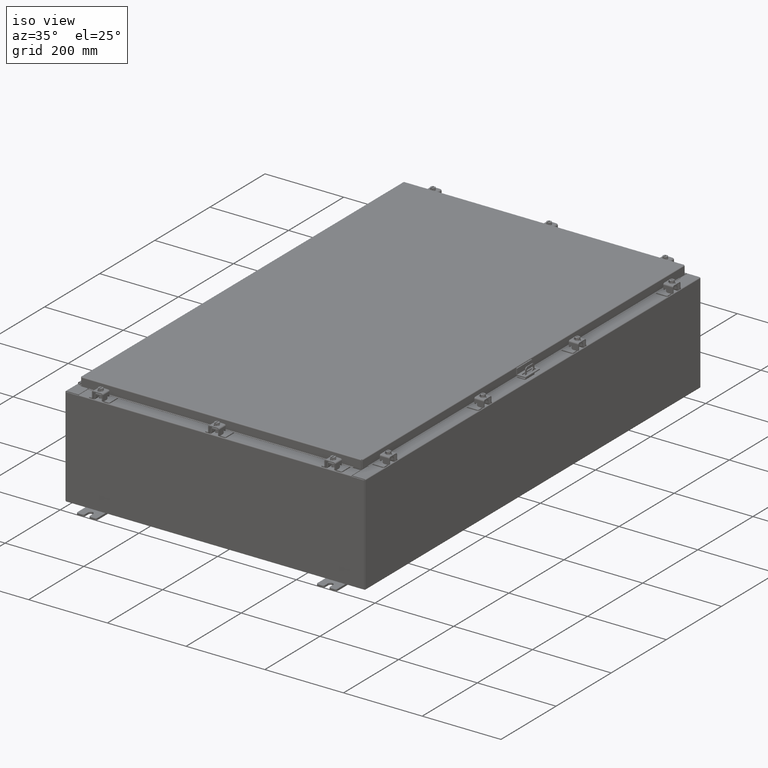
[diagram: clean part render]
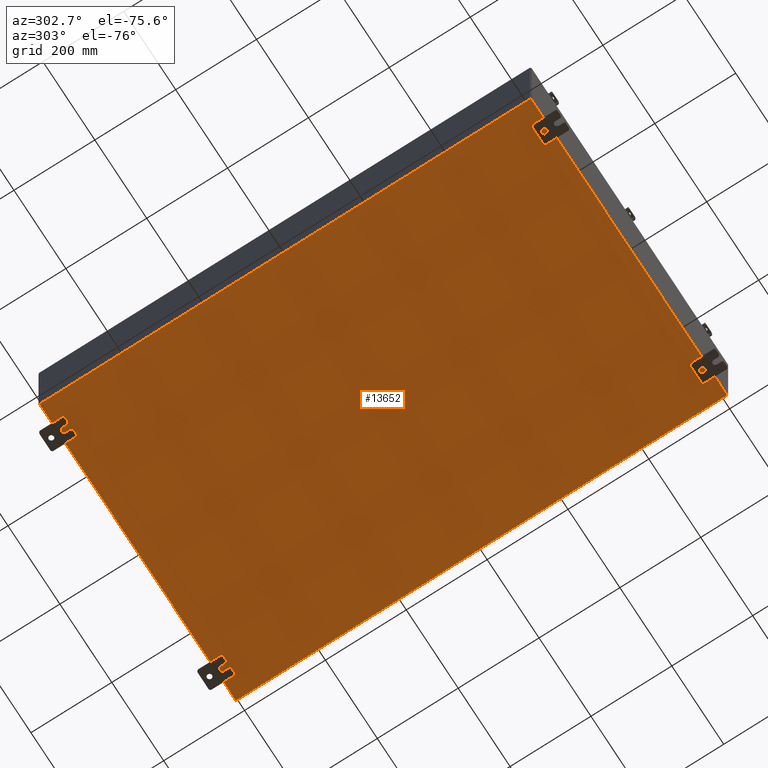
[diagram: tour spotlight — one face highlighted and labeled with its STEP entity id]
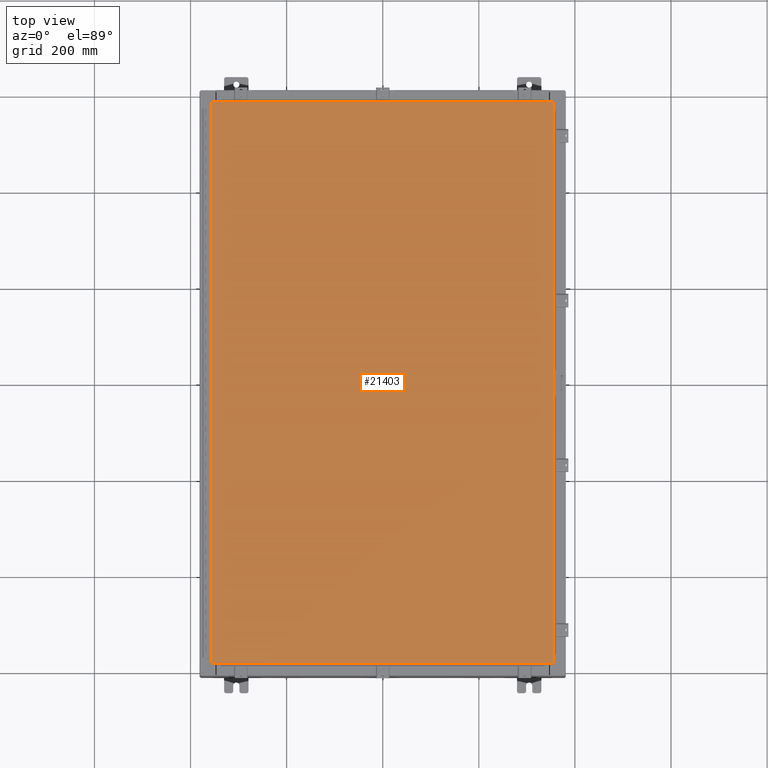
[diagram: tour spotlight — one face highlighted and labeled with its STEP entity id]
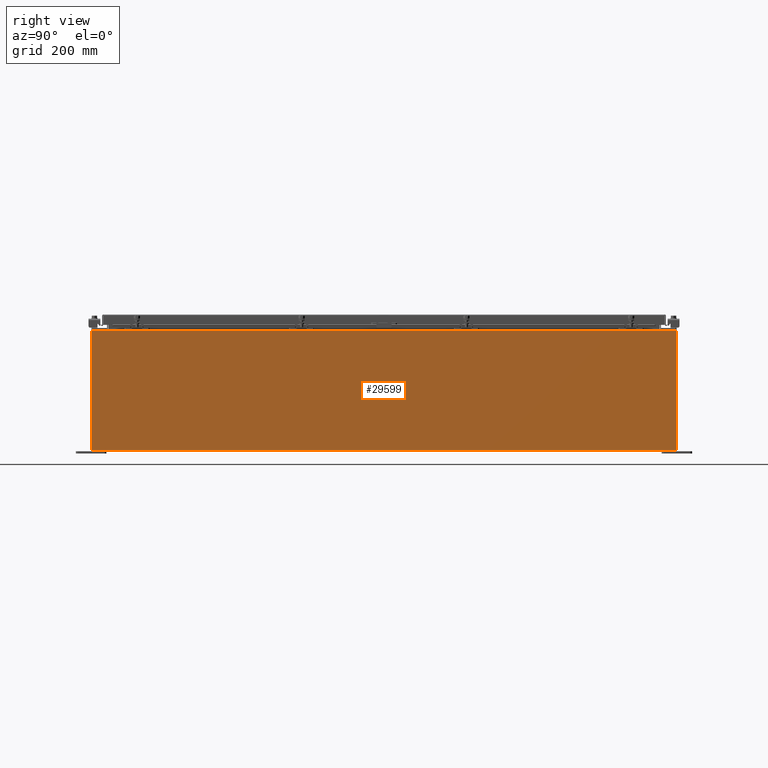
[diagram: tour spotlight — one face highlighted and labeled with its STEP entity id]
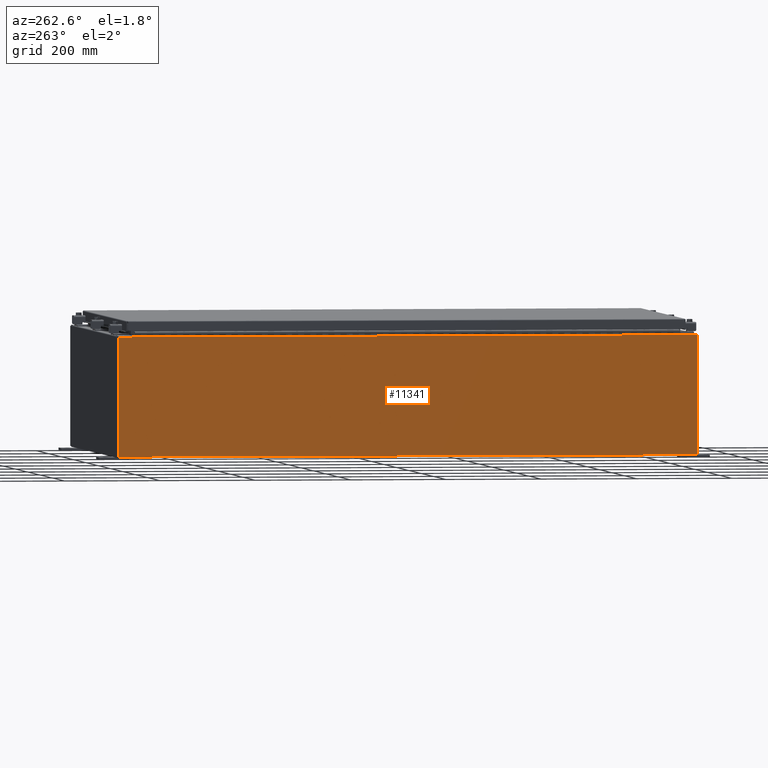
[diagram: tour spotlight — one face highlighted and labeled with its STEP entity id]
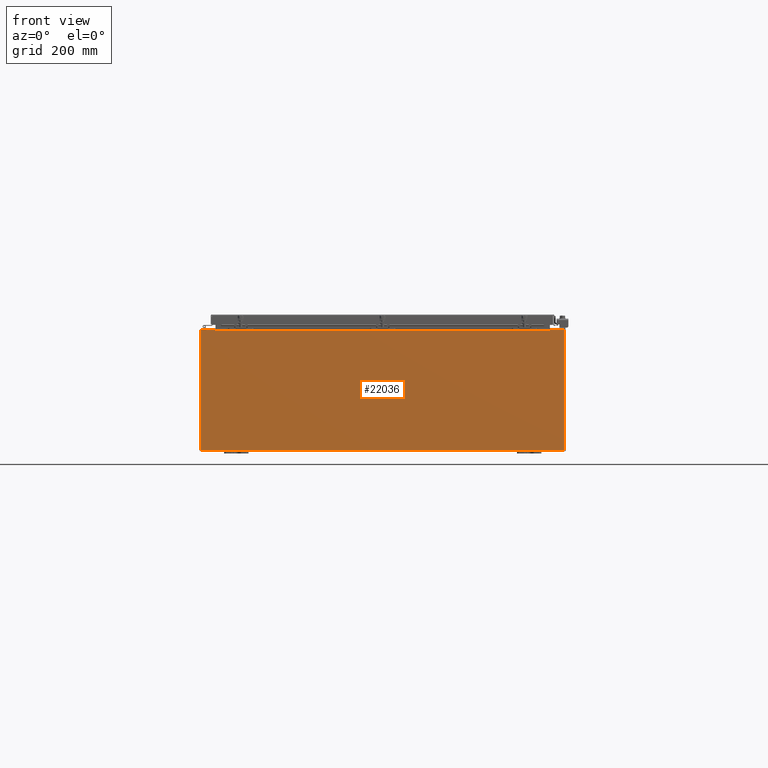
[diagram: tour spotlight — one face highlighted and labeled with its STEP entity id]
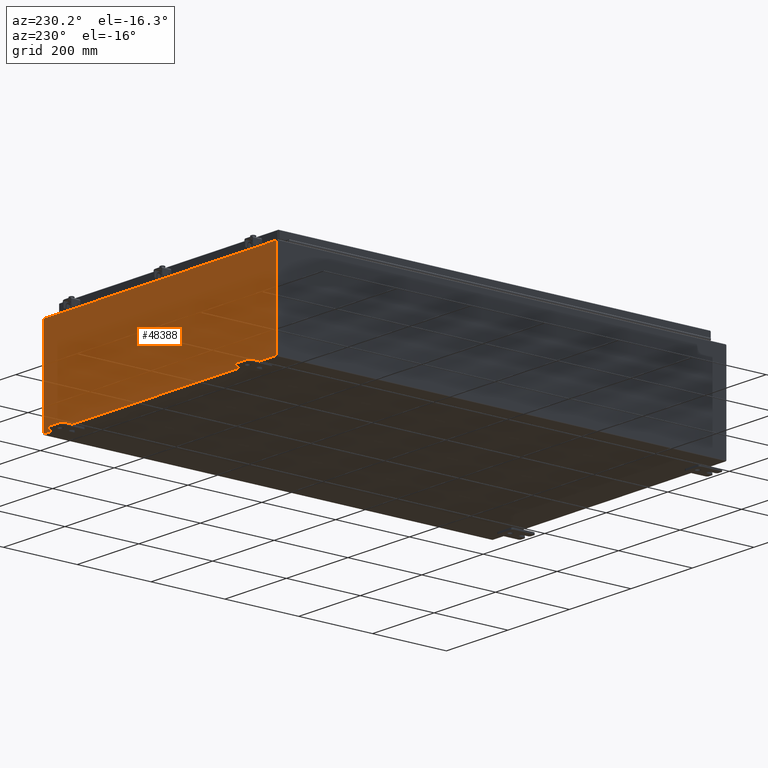
[diagram: tour spotlight — one face highlighted and labeled with its STEP entity id]
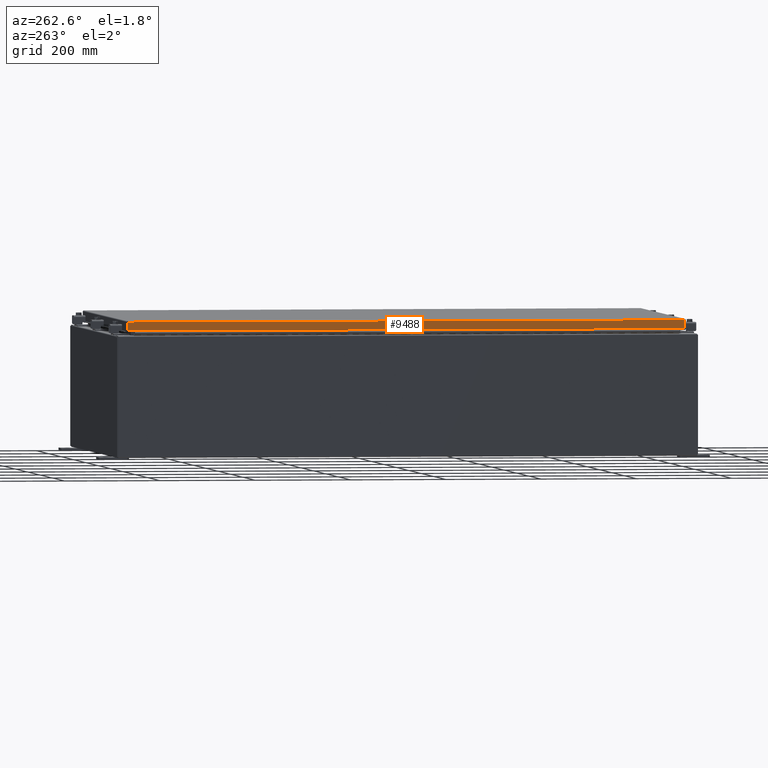
[diagram: tour spotlight — one face highlighted and labeled with its STEP entity id]
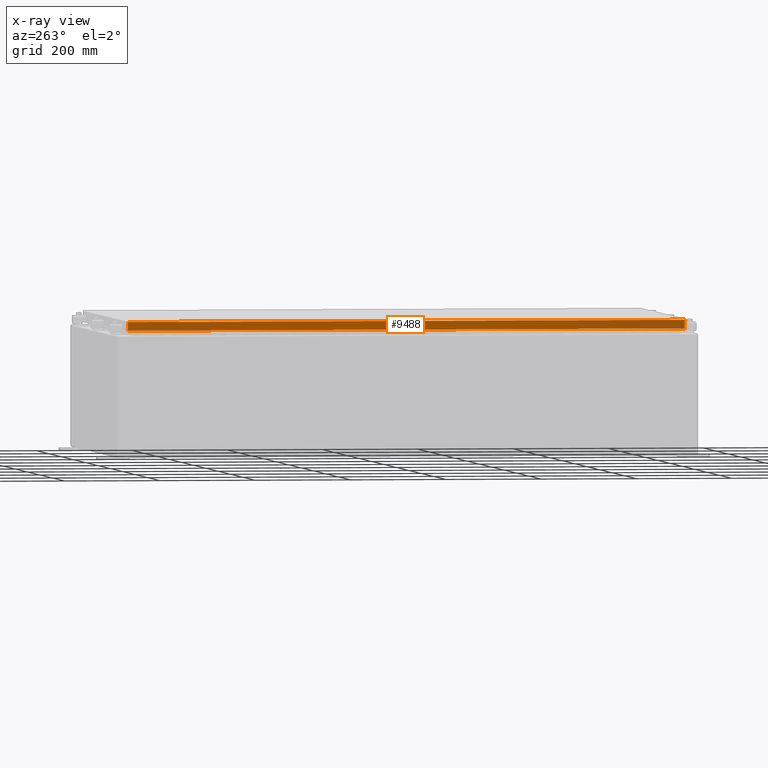
[diagram: x-ray of the same camera — body ghosted, this tour face saturated]
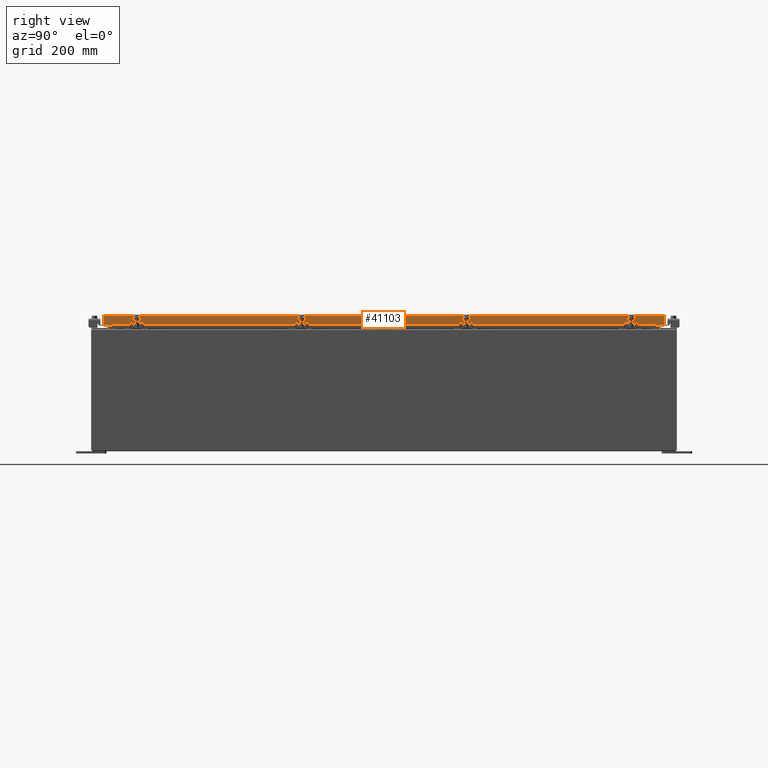
[diagram: tour spotlight — one face highlighted and labeled with its STEP entity id]
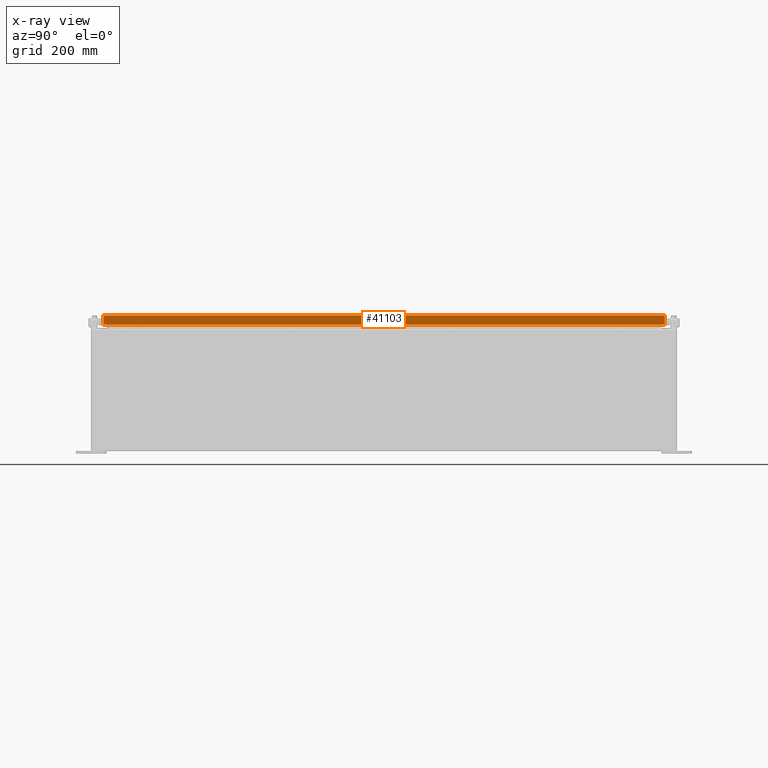
[diagram: x-ray of the same camera — body ghosted, this tour face saturated]
A machine part: a face-by-face anatomy tour. The part has 2887 B-rep faces; the first image is the clean iso view, then the 8 largest visible faces are spotlighted one at a time (largest first), each with its STEP entity span.

Face 1 — auxiliary view, entity #13652. In plain terms, the highlighted planar face has unit normal (0, 0, -1).
Definition (entity closure, byte-faithful):
#1039 = CARTESIAN_POINT ( 'NONE',  ( -14.91230000000000200, 23.92529999999998900, -0.07470000000000000300 ) ) ;
#2179 = ORIENTED_EDGE ( 'NONE', *, *, #15983, .F. ) ;
#6630 = EDGE_CURVE ( 'NONE', #9745, #44501, #14026, .T. ) ;
#6933 = ORIENTED_EDGE ( 'NONE', *, *, #13373, .F. ) ;
#7014 = LINE ( 'NONE', #29489, #20948 ) ;
#8488 = DIRECTION ( 'NONE',  ( 0.0000000000000000000, 0.0000000000000000000, -1.000000000000000000 ) ) ;
#9745 = VERTEX_POINT ( 'NONE', #11150 ) ;
#9839 = PLANE ( 'NONE',  #24682 ) ;
#9887 = CARTESIAN_POINT ( 'NONE',  ( 0.0000000000000000000, 0.0000000000000000000, -0.07470000000000000300 ) ) ;
#11150 = CARTESIAN_POINT ( 'NONE',  ( 14.91229999999999800, 23.92529999999998900, -0.07470000000000300000 ) ) ;
#11648 = VECTOR ( 'NONE', #43843, 39.37007874015748100 ) ;
#11937 = DIRECTION ( 'NONE',  ( 1.000000000000000000, 1.456985596620940400E-016, 0.0000000000000000000 ) ) ;
#11977 = CARTESIAN_POINT ( 'NONE',  ( -14.91230000000000200, -23.92529999999998200, -0.07469999999999994700 ) ) ;
#12112 = DIRECTION ( 'NONE',  ( -1.000000000000000000, 0.0000000000000000000, -0.0000000000000000000 ) ) ;
#12334 = CARTESIAN_POINT ( 'NONE',  ( 14.91229999999999800, -23.92529999999999600, -0.07470000000000000300 ) ) ;
#13373 = EDGE_CURVE ( 'NONE', #34100, #44501, #17411, .T. ) ;
#13652 = ADVANCED_FACE ( 'NONE', ( #17309 ), #9839, .T. ) ;
#13898 = VERTEX_POINT ( 'NONE', #1039 ) ;
#14026 = LINE ( 'NONE', #48764, #46244 ) ;
#14678 = EDGE_CURVE ( 'NONE', #34100, #13898, #28412, .T. ) ;
#14933 = CARTESIAN_POINT ( 'NONE',  ( -15.00000000000000400, -23.92530000000000000, -0.07470000000000000300 ) ) ;
#15983 = EDGE_CURVE ( 'NONE', #9745, #13898, #7014, .T. ) ;
#17309 = FACE_OUTER_BOUND ( 'NONE', #24007, .T. ) ;
#17411 = LINE ( 'NONE', #14933, #27004 ) ;
#20948 = VECTOR ( 'NONE', #48665, 39.37007874015748100 ) ;
#24007 = EDGE_LOOP ( 'NONE', ( #6933, #44877, #2179, #24157 ) ) ;
#24157 = ORIENTED_EDGE ( 'NONE', *, *, #6630, .T. ) ;
#24682 = AXIS2_PLACEMENT_3D ( 'NONE', #9887, #8488, #12112 ) ;
#27004 = VECTOR ( 'NONE', #11937, 39.37007874015748100 ) ;
#28412 = LINE ( 'NONE', #41310, #11648 ) ;
#29489 = CARTESIAN_POINT ( 'NONE',  ( -15.00000000000000400, 23.92530000000000400, -0.07470000000000000300 ) ) ;
#34100 = VERTEX_POINT ( 'NONE', #11977 ) ;
#37810 = DIRECTION ( 'NONE',  ( -0.0000000000000000000, -1.000000000000000000, 8.208677865577646300E-017 ) ) ;
#41310 = CARTESIAN_POINT ( 'NONE',  ( -14.91230000000000200, -23.92529999999998900, -0.07469999999999994700 ) ) ;
#43843 = DIRECTION ( 'NONE',  ( -0.0000000000000000000, 1.000000000000000000, -0.0000000000000000000 ) ) ;
#44501 = VERTEX_POINT ( 'NONE', #12334 ) ;
#44877 = ORIENTED_EDGE ( 'NONE', *, *, #14678, .T. ) ;
#46244 = VECTOR ( 'NONE', #37810, 39.37007874015748100 ) ;
#48665 = DIRECTION ( 'NONE',  ( -1.000000000000000000, -0.0000000000000000000, -0.0000000000000000000 ) ) ;
#48764 = CARTESIAN_POINT ( 'NONE',  ( 14.91229999999999800, 23.92530000000000000, -0.07470000000000300000 ) ) ;

Face 2 — top view, entity #21403. In plain terms, the highlighted planar face has unit normal (0, 0, -1).
Definition (entity closure, byte-faithful):
#228 = VECTOR ( 'NONE', #10652, 39.37007874015748100 ) ;
#687 = CARTESIAN_POINT ( 'NONE',  ( -13.99029999999999800, 23.00630000000000300, -2.048885995248197400E-016 ) ) ;
#2929 = CARTESIAN_POINT ( 'NONE',  ( 13.99029999999999800, 23.00630000000001000, 1.946441695485787500E-015 ) ) ;
#3702 = DIRECTION ( 'NONE',  ( 0.0000000000000000000, 1.000000000000000000, 0.0000000000000000000 ) ) ;
#4905 = VECTOR ( 'NONE', #45309, 39.37007874015748100 ) ;
#5213 = CARTESIAN_POINT ( 'NONE',  ( -13.99029999999999800, -23.00630000000000300, 1.946441695485787500E-015 ) ) ;
#5436 = EDGE_CURVE ( 'NONE', #43702, #48424, #16431, .T. ) ;
#5714 = CARTESIAN_POINT ( 'NONE',  ( -13.99029999999999800, 23.00630000000001000, -2.048885995248197400E-016 ) ) ;
#6141 = AXIS2_PLACEMENT_3D ( 'NONE', #8879, #40805, #10499 ) ;
#8149 = VECTOR ( 'NONE', #3702, 39.37007874015748100 ) ;
#8879 = CARTESIAN_POINT ( 'NONE',  ( 0.0000000000000000000, 0.0000000000000000000, 0.0000000000000000000 ) ) ;
#10499 = DIRECTION ( 'NONE',  ( -1.000000000000000000, 0.0000000000000000000, -0.0000000000000000000 ) ) ;
#10652 = DIRECTION ( 'NONE',  ( 1.000000000000000000, -0.0000000000000000000, -0.0000000000000000000 ) ) ;
#13378 = LINE ( 'NONE', #2929, #24302 ) ;
#15001 = CARTESIAN_POINT ( 'NONE',  ( 13.99029999999999800, -23.00630000000000300, -2.048885995248197400E-016 ) ) ;
#15099 = CARTESIAN_POINT ( 'NONE',  ( -13.99029999999999800, -23.00630000000000300, 1.946441695485787500E-015 ) ) ;
#16431 = LINE ( 'NONE', #46217, #8149 ) ;
#17039 = LINE ( 'NONE', #687, #4905 ) ;
#17772 = FACE_OUTER_BOUND ( 'NONE', #39127, .T. ) ;
#18422 = EDGE_CURVE ( 'NONE', #18690, #43702, #43444, .T. ) ;
#18690 = VERTEX_POINT ( 'NONE', #5213 ) ;
#20825 = EDGE_CURVE ( 'NONE', #48424, #31576, #13378, .T. ) ;
#21403 = ADVANCED_FACE ( 'NONE', ( #17772 ), #52187, .F. ) ;
#22001 = ORIENTED_EDGE ( 'NONE', *, *, #5436, .T. ) ;
#22547 = ORIENTED_EDGE ( 'NONE', *, *, #18422, .T. ) ;
#24302 = VECTOR ( 'NONE', #48581, 39.37007874015748100 ) ;
#24717 = ORIENTED_EDGE ( 'NONE', *, *, #20825, .T. ) ;
#29444 = CARTESIAN_POINT ( 'NONE',  ( 13.99029999999999800, 23.00630000000001000, 1.946441695485787500E-015 ) ) ;
#31548 = ORIENTED_EDGE ( 'NONE', *, *, #44665, .T. ) ;
#31576 = VERTEX_POINT ( 'NONE', #5714 ) ;
#39127 = EDGE_LOOP ( 'NONE', ( #22547, #22001, #24717, #31548 ) ) ;
#40805 = DIRECTION ( 'NONE',  ( 0.0000000000000000000, 0.0000000000000000000, -1.000000000000000000 ) ) ;
#43444 = LINE ( 'NONE', #15099, #228 ) ;
#43702 = VERTEX_POINT ( 'NONE', #15001 ) ;
#44665 = EDGE_CURVE ( 'NONE', #31576, #18690, #17039, .T. ) ;
#45309 = DIRECTION ( 'NONE',  ( 0.0000000000000000000, -1.000000000000000000, 0.0000000000000000000 ) ) ;
#46217 = CARTESIAN_POINT ( 'NONE',  ( 13.99029999999999800, -23.00630000000000300, -2.048885995248197400E-016 ) ) ;
#48424 = VERTEX_POINT ( 'NONE', #29444 ) ;
#48581 = DIRECTION ( 'NONE',  ( -1.000000000000000000, -0.0000000000000000000, -0.0000000000000000000 ) ) ;
#52187 = PLANE ( 'NONE',  #6141 ) ;

Face 3 — right view, entity #29599. In plain terms, the highlighted planar face has unit normal (-1, 0, 0).
Definition (entity closure, byte-faithful):
#1083 = DIRECTION ( 'NONE',  ( 1.609096119163526300E-031, -1.000000000000000000, 4.567295697298285000E-017 ) ) ;
#2157 = CARTESIAN_POINT ( 'NONE',  ( 15.00000000000003400, -23.92529999999998600, 9.837600000000001900 ) ) ;
#2725 = CARTESIAN_POINT ( 'NONE',  ( 15.00000000000003400, 23.92529999999998600, 9.837599999999994800 ) ) ;
#3415 = CARTESIAN_POINT ( 'NONE',  ( 14.99999999999999800, -23.92529999999998600, -5.310705656892488900E-014 ) ) ;
#5361 = LINE ( 'NONE', #25646, #48538 ) ;
#5520 = ORIENTED_EDGE ( 'NONE', *, *, #40905, .T. ) ;
#6357 = VERTEX_POINT ( 'NONE', #2725 ) ;
#6366 = CARTESIAN_POINT ( 'NONE',  ( 14.99999999999999800, -23.92529999999998200, 0.01300000000000071400 ) ) ;
#6665 = CARTESIAN_POINT ( 'NONE',  ( 14.99999999999999800, 23.92529999999999600, -5.310705656892488900E-014 ) ) ;
#10153 = DIRECTION ( 'NONE',  ( -1.000000000000000000, 0.0000000000000000000, 3.523082860860887800E-015 ) ) ;
#10535 = ORIENTED_EDGE ( 'NONE', *, *, #31302, .T. ) ;
#10791 = DIRECTION ( 'NONE',  ( 3.523082860860888200E-015, 0.0000000000000000000, 1.000000000000000000 ) ) ;
#11184 = ORIENTED_EDGE ( 'NONE', *, *, #46456, .F. ) ;
#11230 = FACE_OUTER_BOUND ( 'NONE', #51629, .T. ) ;
#18292 = DIRECTION ( 'NONE',  ( -0.0000000000000000000, -1.000000000000000000, -0.0000000000000000000 ) ) ;
#19045 = LINE ( 'NONE', #6665, #50062 ) ;
#20934 = DIRECTION ( 'NONE',  ( 3.523082860860887800E-015, 0.0000000000000000000, 1.000000000000000000 ) ) ;
#24353 = ORIENTED_EDGE ( 'NONE', *, *, #35939, .T. ) ;
#25646 = CARTESIAN_POINT ( 'NONE',  ( 14.99999999999999800, -23.92529999999998600, 0.01299999999999984700 ) ) ;
#26573 = CARTESIAN_POINT ( 'NONE',  ( 15.00000000000003400, 23.92529999999999600, 9.837599999999994800 ) ) ;
#29190 = CARTESIAN_POINT ( 'NONE',  ( 14.99999999999999800, 23.92529999999998900, 0.01299999999999766100 ) ) ;
#29599 = ADVANCED_FACE ( 'NONE', ( #11230 ), #38399, .F. ) ;
#30523 = CARTESIAN_POINT ( 'NONE',  ( 14.99999999999999800, 0.0000000000000000000, -5.310705656892488900E-014 ) ) ;
#31302 = EDGE_CURVE ( 'NONE', #33638, #34479, #48468, .T. ) ;
#33188 = LINE ( 'NONE', #26573, #43863 ) ;
#33638 = VERTEX_POINT ( 'NONE', #2157 ) ;
#34479 = VERTEX_POINT ( 'NONE', #6366 ) ;
#35939 = EDGE_CURVE ( 'NONE', #6357, #33638, #33188, .T. ) ;
#37751 = VECTOR ( 'NONE', #48330, 39.37007874015748100 ) ;
#38399 = PLANE ( 'NONE',  #48673 ) ;
#40644 = VERTEX_POINT ( 'NONE', #29190 ) ;
#40905 = EDGE_CURVE ( 'NONE', #40644, #6357, #19045, .T. ) ;
#43863 = VECTOR ( 'NONE', #18292, 39.37007874015748100 ) ;
#46456 = EDGE_CURVE ( 'NONE', #40644, #34479, #5361, .T. ) ;
#48330 = DIRECTION ( 'NONE',  ( -3.523082860860888200E-015, 0.0000000000000000000, -1.000000000000000000 ) ) ;
#48468 = LINE ( 'NONE', #3415, #37751 ) ;
#48538 = VECTOR ( 'NONE', #1083, 39.37007874015748100 ) ;
#48673 = AXIS2_PLACEMENT_3D ( 'NONE', #30523, #10153, #20934 ) ;
#50062 = VECTOR ( 'NONE', #10791, 39.37007874015748100 ) ;
#51629 = EDGE_LOOP ( 'NONE', ( #24353, #10535, #11184, #5520 ) ) ;

Face 4 — auxiliary view, entity #11341. In plain terms, the highlighted planar face has unit normal (1, 0, 0).
Definition (entity closure, byte-faithful):
#76 = VERTEX_POINT ( 'NONE', #14481 ) ;
#172 = AXIS2_PLACEMENT_3D ( 'NONE', #20066, #39780, #39944 ) ;
#499 = EDGE_CURVE ( 'NONE', #29114, #1097, #11854, .T. ) ;
#1097 = VERTEX_POINT ( 'NONE', #9558 ) ;
#2792 = LINE ( 'NONE', #37887, #13019 ) ;
#3247 = EDGE_CURVE ( 'NONE', #1097, #76, #31939, .T. ) ;
#9558 = CARTESIAN_POINT ( 'NONE',  ( -15.00000000000003700, -23.92529999999998200, 9.837599999999998300 ) ) ;
#11341 = ADVANCED_FACE ( 'NONE', ( #22157 ), #25144, .F. ) ;
#11854 = LINE ( 'NONE', #30064, #30404 ) ;
#12497 = LINE ( 'NONE', #42399, #22149 ) ;
#12916 = DIRECTION ( 'NONE',  ( 0.0000000000000000000, 1.000000000000000000, 0.0000000000000000000 ) ) ;
#13019 = VECTOR ( 'NONE', #49347, 39.37007874015748100 ) ;
#14481 = CARTESIAN_POINT ( 'NONE',  ( -15.00000000000003700, 23.92529999999999600, 9.837599999999998300 ) ) ;
#15903 = EDGE_CURVE ( 'NONE', #76, #31485, #2792, .T. ) ;
#18389 = EDGE_LOOP ( 'NONE', ( #52275, #44582, #32023, #34085 ) ) ;
#20066 = CARTESIAN_POINT ( 'NONE',  ( -15.00000000000000400, 0.0000000000000000000, -5.310705656892490100E-014 ) ) ;
#20960 = DIRECTION ( 'NONE',  ( -3.523082860860888200E-015, 0.0000000000000000000, 1.000000000000000000 ) ) ;
#22149 = VECTOR ( 'NONE', #26450, 39.37007874015748100 ) ;
#22157 = FACE_OUTER_BOUND ( 'NONE', #18389, .T. ) ;
#23333 = CARTESIAN_POINT ( 'NONE',  ( -15.00000000000000400, -23.92529999999998200, 0.01299999999999984700 ) ) ;
#25144 = PLANE ( 'NONE',  #172 ) ;
#25442 = CARTESIAN_POINT ( 'NONE',  ( -15.00000000000000400, 23.92529999999998900, 0.01299999999999984300 ) ) ;
#26450 = DIRECTION ( 'NONE',  ( -0.0000000000000000000, 1.000000000000000000, -0.0000000000000000000 ) ) ;
#29114 = VERTEX_POINT ( 'NONE', #23333 ) ;
#29579 = EDGE_CURVE ( 'NONE', #29114, #31485, #12497, .T. ) ;
#30064 = CARTESIAN_POINT ( 'NONE',  ( -15.00000000000000400, -23.92529999999998900, -5.310705656892490100E-014 ) ) ;
#30404 = VECTOR ( 'NONE', #20960, 39.37007874015748100 ) ;
#31485 = VERTEX_POINT ( 'NONE', #25442 ) ;
#31939 = LINE ( 'NONE', #34518, #35550 ) ;
#32023 = ORIENTED_EDGE ( 'NONE', *, *, #29579, .F. ) ;
#34085 = ORIENTED_EDGE ( 'NONE', *, *, #499, .T. ) ;
#34518 = CARTESIAN_POINT ( 'NONE',  ( -15.00000000000003700, -23.92529999999998600, 9.837599999999998300 ) ) ;
#35550 = VECTOR ( 'NONE', #12916, 39.37007874015748100 ) ;
#37887 = CARTESIAN_POINT ( 'NONE',  ( -15.00000000000000400, 23.92529999999999600, -5.310705656892490100E-014 ) ) ;
#39780 = DIRECTION ( 'NONE',  ( 1.000000000000000000, 0.0000000000000000000, 3.523082860860887800E-015 ) ) ;
#39944 = DIRECTION ( 'NONE',  ( 3.523082860860887800E-015, 0.0000000000000000000, -1.000000000000000000 ) ) ;
#42399 = CARTESIAN_POINT ( 'NONE',  ( -15.00000000000000400, 23.92529999999999600, 0.01299999999999984700 ) ) ;
#44582 = ORIENTED_EDGE ( 'NONE', *, *, #15903, .T. ) ;
#49347 = DIRECTION ( 'NONE',  ( 3.523082860860888200E-015, 0.0000000000000000000, -1.000000000000000000 ) ) ;
#52275 = ORIENTED_EDGE ( 'NONE', *, *, #3247, .T. ) ;

Face 5 — front view, entity #22036. In plain terms, the highlighted planar face has unit normal (-0, 1, -0).
Definition (entity closure, byte-faithful):
#6 = EDGE_CURVE ( 'NONE', #18243, #803, #5464, .T. ) ;
#521 = CARTESIAN_POINT ( 'NONE',  ( -14.92530000000000200, 0.0000000000000000000, 4.925300000000000000 ) ) ;
#737 = DIRECTION ( 'NONE',  ( 1.000000000000000000, 0.0000000000000000000, 0.0000000000000000000 ) ) ;
#803 = VERTEX_POINT ( 'NONE', #44461 ) ;
#1062 = VECTOR ( 'NONE', #12220, 39.37007874015748100 ) ;
#2704 = CARTESIAN_POINT ( 'NONE',  ( -13.63720000000000000, -7.171100983368691200E-016, 4.912300000000000100 ) ) ;
#3843 = LINE ( 'NONE', #17683, #32860 ) ;
#3858 = LINE ( 'NONE', #30234, #14768 ) ;
#4522 = LINE ( 'NONE', #39090, #26323 ) ;
#4591 = ORIENTED_EDGE ( 'NONE', *, *, #6, .F. ) ;
#5464 = LINE ( 'NONE', #14004, #16321 ) ;
#5613 = CARTESIAN_POINT ( 'NONE',  ( -14.92530000000000200, 0.0000000000000000000, 4.925300000000000000 ) ) ;
#7044 = LINE ( 'NONE', #13327, #48953 ) ;
#8191 = EDGE_CURVE ( 'NONE', #32980, #15924, #21690, .T. ) ;
#8384 = ORIENTED_EDGE ( 'NONE', *, *, #21887, .T. ) ;
#10402 = ORIENTED_EDGE ( 'NONE', *, *, #17734, .F. ) ;
#10409 = EDGE_CURVE ( 'NONE', #18243, #31428, #24096, .T. ) ;
#10518 = CARTESIAN_POINT ( 'NONE',  ( -13.65587500000000000, 0.0000000000000000000, 4.874950000000000100 ) ) ;
#10563 = CARTESIAN_POINT ( 'NONE',  ( 13.63719999999999800, 0.0000000000000000000, 4.874950000000000100 ) ) ;
#11323 = DIRECTION ( 'NONE',  ( -1.000000000000000000, -0.0000000000000000000, -0.0000000000000000000 ) ) ;
#12136 = ORIENTED_EDGE ( 'NONE', *, *, #23454, .T. ) ;
#12220 = DIRECTION ( 'NONE',  ( 1.000000000000000000, 0.0000000000000000000, 0.0000000000000000000 ) ) ;
#12225 = CARTESIAN_POINT ( 'NONE',  ( 13.65587499999999800, 0.0000000000000000000, 4.874950000000000100 ) ) ;
#13065 = EDGE_CURVE ( 'NONE', #52687, #36446, #3843, .T. ) ;
#13327 = CARTESIAN_POINT ( 'NONE',  ( 13.67454999999978500, -0.0000000000000000000, -5.935537951421795000E-013 ) ) ;
#13510 = DIRECTION ( 'NONE',  ( -4.340572780400004900E-014, 0.0000000000000000000, -1.000000000000000000 ) ) ;
#13700 = VECTOR ( 'NONE', #737, 39.37007874015748100 ) ;
#14004 = CARTESIAN_POINT ( 'NONE',  ( -13.63720000000000000, -0.0000000000000000000, 0.0000000000000000000 ) ) ;
#14618 = DIRECTION ( 'NONE',  ( 0.0000000000000000000, 0.0000000000000000000, -1.000000000000000000 ) ) ;
#14768 = VECTOR ( 'NONE', #11323, 39.37007874015748100 ) ;
#14799 = DIRECTION ( 'NONE',  ( 0.0000000000000000000, 0.0000000000000000000, 1.000000000000000000 ) ) ;
#15176 = CIRCLE ( 'NONE', #51811, 0.01867499999999949400 ) ;
#15751 = ORIENTED_EDGE ( 'NONE', *, *, #35792, .F. ) ;
#15924 = VERTEX_POINT ( 'NONE', #38230 ) ;
#16001 = VERTEX_POINT ( 'NONE', #23720 ) ;
#16321 = VECTOR ( 'NONE', #43128, 39.37007874015748100 ) ;
#16849 = VECTOR ( 'NONE', #28672, 39.37007874015748100 ) ;
#17005 = DIRECTION ( 'NONE',  ( -0.0000000000000000000, 1.000000000000000000, -0.0000000000000000000 ) ) ;
#17590 = ORIENTED_EDGE ( 'NONE', *, *, #8191, .T. ) ;
#17683 = CARTESIAN_POINT ( 'NONE',  ( -13.67455000000000000, -0.0000000000000000000, 0.0000000000000000000 ) ) ;
#17734 = EDGE_CURVE ( 'NONE', #16001, #41627, #36024, .T. ) ;
#17970 = AXIS2_PLACEMENT_3D ( 'NONE', #12225, #17005, #32364 ) ;
#18149 = LINE ( 'NONE', #33729, #16849 ) ;
#18243 = VERTEX_POINT ( 'NONE', #2704 ) ;
#18320 = VERTEX_POINT ( 'NONE', #44505 ) ;
#19515 = AXIS2_PLACEMENT_3D ( 'NONE', #46278, #46128, #50158 ) ;
#21276 = CARTESIAN_POINT ( 'NONE',  ( -14.92530000000000200, 0.0000000000000000000, -4.925300000000000000 ) ) ;
#21690 = LINE ( 'NONE', #521, #1062 ) ;
#21887 = EDGE_CURVE ( 'NONE', #39339, #23052, #18149, .T. ) ;
#22036 = ADVANCED_FACE ( 'NONE', ( #33413 ), #48644, .F. ) ;
#22486 = CARTESIAN_POINT ( 'NONE',  ( 13.67455000000000000, 0.0000000000000000000, 4.925300000000000000 ) ) ;
#22503 = LINE ( 'NONE', #43278, #42611 ) ;
#23052 = VERTEX_POINT ( 'NONE', #49333 ) ;
#23454 = EDGE_CURVE ( 'NONE', #18320, #39339, #3858, .T. ) ;
#23720 = CARTESIAN_POINT ( 'NONE',  ( 13.67454999999999800, 0.0000000000000000000, 4.874950000000000100 ) ) ;
#24096 = LINE ( 'NONE', #24333, #13700 ) ;
#24333 = CARTESIAN_POINT ( 'NONE',  ( -13.63720000000000400, -7.171100983368691200E-016, 4.912300000000000100 ) ) ;
#25116 = CARTESIAN_POINT ( 'NONE',  ( 13.63719999999999800, 0.0000000000000000000, 4.912300000000000100 ) ) ;
#26323 = VECTOR ( 'NONE', #14799, 39.37007874015748100 ) ;
#28672 = DIRECTION ( 'NONE',  ( -0.0000000000000000000, -0.0000000000000000000, 1.000000000000000000 ) ) ;
#30234 = CARTESIAN_POINT ( 'NONE',  ( -14.92530000000000200, 0.0000000000000000000, -4.925300000000000000 ) ) ;
#31428 = VERTEX_POINT ( 'NONE', #25116 ) ;
#32364 = DIRECTION ( 'NONE',  ( 0.0000000000000000000, 0.0000000000000000000, -1.000000000000000000 ) ) ;
#32416 = EDGE_CURVE ( 'NONE', #15924, #18320, #22503, .T. ) ;
#32860 = VECTOR ( 'NONE', #44322, 39.37007874015748100 ) ;
#32980 = VERTEX_POINT ( 'NONE', #22486 ) ;
#33152 = ORIENTED_EDGE ( 'NONE', *, *, #37370, .F. ) ;
#33413 = FACE_OUTER_BOUND ( 'NONE', #39280, .T. ) ;
#33729 = CARTESIAN_POINT ( 'NONE',  ( -14.92530000000000200, 0.0000000000000000000, 4.925300000000000000 ) ) ;
#34442 = VECTOR ( 'NONE', #46462, 39.37007874015748100 ) ;
#34574 = CARTESIAN_POINT ( 'NONE',  ( -13.67455000000000000, 0.0000000000000000000, 4.874950000000000100 ) ) ;
#34995 = ORIENTED_EDGE ( 'NONE', *, *, #35342, .F. ) ;
#35342 = EDGE_CURVE ( 'NONE', #41627, #31428, #4522, .T. ) ;
#35343 = ORIENTED_EDGE ( 'NONE', *, *, #32416, .T. ) ;
#35610 = ORIENTED_EDGE ( 'NONE', *, *, #35886, .T. ) ;
#35792 = EDGE_CURVE ( 'NONE', #32980, #16001, #7044, .T. ) ;
#35886 = EDGE_CURVE ( 'NONE', #23052, #36446, #46428, .T. ) ;
#36024 = CIRCLE ( 'NONE', #17970, 0.01867499999999949400 ) ;
#36446 = VERTEX_POINT ( 'NONE', #41763 ) ;
#37370 = EDGE_CURVE ( 'NONE', #803, #52687, #15176, .T. ) ;
#38230 = CARTESIAN_POINT ( 'NONE',  ( 14.92529999999999800, 0.0000000000000000000, 4.925300000000000000 ) ) ;
#38559 = ORIENTED_EDGE ( 'NONE', *, *, #10409, .T. ) ;
#38903 = DIRECTION ( 'NONE',  ( -0.0000000000000000000, 1.000000000000000000, -0.0000000000000000000 ) ) ;
#39090 = CARTESIAN_POINT ( 'NONE',  ( 13.63719999999999800, 0.0000000000000000000, 0.0000000000000000000 ) ) ;
#39280 = EDGE_LOOP ( 'NONE', ( #43435, #33152, #4591, #38559, #34995, #10402, #15751, #17590, #35343, #12136, #8384, #35610 ) ) ;
#39339 = VERTEX_POINT ( 'NONE', #21276 ) ;
#41627 = VERTEX_POINT ( 'NONE', #10563 ) ;
#41763 = CARTESIAN_POINT ( 'NONE',  ( -13.67455000000000000, 0.0000000000000000000, 4.925300000000000000 ) ) ;
#42611 = VECTOR ( 'NONE', #47418, 39.37007874015748100 ) ;
#43128 = DIRECTION ( 'NONE',  ( 0.0000000000000000000, 0.0000000000000000000, -1.000000000000000000 ) ) ;
#43278 = CARTESIAN_POINT ( 'NONE',  ( 14.92529999999999800, 0.0000000000000000000, 4.925300000000000000 ) ) ;
#43435 = ORIENTED_EDGE ( 'NONE', *, *, #13065, .F. ) ;
#44322 = DIRECTION ( 'NONE',  ( 0.0000000000000000000, 0.0000000000000000000, 1.000000000000000000 ) ) ;
#44461 = CARTESIAN_POINT ( 'NONE',  ( -13.63720000000000000, -0.0000000000000000000, 4.874950000000000100 ) ) ;
#44505 = CARTESIAN_POINT ( 'NONE',  ( 14.92529999999999800, 0.0000000000000000000, -4.925300000000000000 ) ) ;
#46128 = DIRECTION ( 'NONE',  ( 0.0000000000000000000, -1.000000000000000000, 0.0000000000000000000 ) ) ;
#46278 = CARTESIAN_POINT ( 'NONE',  ( 0.0000000000000000000, 0.0000000000000000000, 0.0000000000000000000 ) ) ;
#46428 = LINE ( 'NONE', #5613, #34442 ) ;
#46462 = DIRECTION ( 'NONE',  ( 1.000000000000000000, 0.0000000000000000000, 0.0000000000000000000 ) ) ;
#47418 = DIRECTION ( 'NONE',  ( 0.0000000000000000000, 0.0000000000000000000, -1.000000000000000000 ) ) ;
#48644 = PLANE ( 'NONE',  #19515 ) ;
#48953 = VECTOR ( 'NONE', #13510, 39.37007874015748100 ) ;
#49333 = CARTESIAN_POINT ( 'NONE',  ( -14.92530000000000200, 0.0000000000000000000, 4.925300000000000000 ) ) ;
#50158 = DIRECTION ( 'NONE',  ( 0.0000000000000000000, -0.0000000000000000000, -1.000000000000000000 ) ) ;
#51811 = AXIS2_PLACEMENT_3D ( 'NONE', #10518, #38903, #14618 ) ;
#52687 = VERTEX_POINT ( 'NONE', #34574 ) ;

Face 6 — auxiliary view, entity #48388. In plain terms, the highlighted planar face has unit normal (0, -1, 0).
Definition (entity closure, byte-faithful):
#736 = CARTESIAN_POINT ( 'NONE',  ( 13.63719999999999800, 0.0000000000000000000, 4.912300000000000100 ) ) ;
#979 = EDGE_CURVE ( 'NONE', #48453, #29420, #37546, .T. ) ;
#1312 = CIRCLE ( 'NONE', #52298, 0.01867499999999949400 ) ;
#1473 = ORIENTED_EDGE ( 'NONE', *, *, #18991, .F. ) ;
#2048 = DIRECTION ( 'NONE',  ( 1.000000000000000000, 0.0000000000000000000, 0.0000000000000000000 ) ) ;
#2163 = VERTEX_POINT ( 'NONE', #46306 ) ;
#2865 = VERTEX_POINT ( 'NONE', #21040 ) ;
#3250 = ORIENTED_EDGE ( 'NONE', *, *, #979, .T. ) ;
#4809 = DIRECTION ( 'NONE',  ( 0.0000000000000000000, 0.0000000000000000000, 1.000000000000000000 ) ) ;
#5514 = VERTEX_POINT ( 'NONE', #7846 ) ;
#5741 = DIRECTION ( 'NONE',  ( 0.0000000000000000000, 0.0000000000000000000, 1.000000000000000000 ) ) ;
#7083 = ORIENTED_EDGE ( 'NONE', *, *, #39364, .T. ) ;
#7460 = LINE ( 'NONE', #29723, #49346 ) ;
#7846 = CARTESIAN_POINT ( 'NONE',  ( -13.63720000000000000, -0.0000000000000000000, 4.874950000000000100 ) ) ;
#8066 = VECTOR ( 'NONE', #5741, 39.37007874015748100 ) ;
#8901 = CARTESIAN_POINT ( 'NONE',  ( 0.0000000000000000000, 0.0000000000000000000, 0.0000000000000000000 ) ) ;
#8940 = CARTESIAN_POINT ( 'NONE',  ( -13.67455000000000000, -0.0000000000000000000, 0.0000000000000000000 ) ) ;
#9790 = LINE ( 'NONE', #11317, #23336 ) ;
#11317 = CARTESIAN_POINT ( 'NONE',  ( 13.67454999999978500, -0.0000000000000000000, -5.935537951421795000E-013 ) ) ;
#11345 = EDGE_LOOP ( 'NONE', ( #23231, #1473, #24707, #44632, #40342, #11840, #28549, #13656, #41765, #48025, #7083, #3250 ) ) ;
#11354 = VECTOR ( 'NONE', #20572, 39.37007874015748100 ) ;
#11402 = DIRECTION ( 'NONE',  ( 0.0000000000000000000, 0.0000000000000000000, -1.000000000000000000 ) ) ;
#11728 = EDGE_CURVE ( 'NONE', #2163, #33593, #9790, .T. ) ;
#11840 = ORIENTED_EDGE ( 'NONE', *, *, #20087, .F. ) ;
#13006 = PLANE ( 'NONE',  #19355 ) ;
#13535 = DIRECTION ( 'NONE',  ( -0.0000000000000000000, 1.000000000000000000, -0.0000000000000000000 ) ) ;
#13656 = ORIENTED_EDGE ( 'NONE', *, *, #26694, .T. ) ;
#14643 = LINE ( 'NONE', #17286, #15872 ) ;
#15275 = DIRECTION ( 'NONE',  ( -4.340572780400004900E-014, 0.0000000000000000000, -1.000000000000000000 ) ) ;
#15438 = CARTESIAN_POINT ( 'NONE',  ( 13.63719999999999800, 0.0000000000000000000, 4.874950000000000100 ) ) ;
#15536 = EDGE_CURVE ( 'NONE', #47570, #36673, #32813, .T. ) ;
#15854 = CARTESIAN_POINT ( 'NONE',  ( -13.63720000000000000, -0.0000000000000000000, 0.0000000000000000000 ) ) ;
#15872 = VECTOR ( 'NONE', #25408, 39.37007874015748100 ) ;
#16079 = CARTESIAN_POINT ( 'NONE',  ( 14.92529999999999800, 0.0000000000000000000, 4.925300000000000000 ) ) ;
#16860 = EDGE_CURVE ( 'NONE', #2865, #23131, #7460, .T. ) ;
#17021 = VECTOR ( 'NONE', #32202, 39.37007874015748100 ) ;
#17075 = DIRECTION ( 'NONE',  ( 0.0000000000000000000, -1.000000000000000000, 0.0000000000000000000 ) ) ;
#17286 = CARTESIAN_POINT ( 'NONE',  ( -14.92530000000000200, 0.0000000000000000000, 4.925300000000000000 ) ) ;
#18413 = DIRECTION ( 'NONE',  ( 0.0000000000000000000, 0.0000000000000000000, -1.000000000000000000 ) ) ;
#18560 = VERTEX_POINT ( 'NONE', #21615 ) ;
#18991 = EDGE_CURVE ( 'NONE', #5514, #18560, #21320, .T. ) ;
#19101 = VECTOR ( 'NONE', #2048, 39.37007874015748100 ) ;
#19355 = AXIS2_PLACEMENT_3D ( 'NONE', #8901, #17075, #45449 ) ;
#20001 = DIRECTION ( 'NONE',  ( 0.0000000000000000000, 0.0000000000000000000, -1.000000000000000000 ) ) ;
#20087 = EDGE_CURVE ( 'NONE', #33593, #26722, #1312, .T. ) ;
#20572 = DIRECTION ( 'NONE',  ( -1.000000000000000000, -0.0000000000000000000, -0.0000000000000000000 ) ) ;
#21040 = CARTESIAN_POINT ( 'NONE',  ( -13.63720000000000000, -7.171100983368691200E-016, 4.912300000000000100 ) ) ;
#21320 = CIRCLE ( 'NONE', #26617, 0.01867499999999949400 ) ;
#21615 = CARTESIAN_POINT ( 'NONE',  ( -13.67455000000000000, 0.0000000000000000000, 4.874950000000000100 ) ) ;
#21919 = CARTESIAN_POINT ( 'NONE',  ( -14.92530000000000200, 0.0000000000000000000, -4.925300000000000000 ) ) ;
#22879 = CARTESIAN_POINT ( 'NONE',  ( 14.92529999999999800, 0.0000000000000000000, 4.925300000000000000 ) ) ;
#23131 = VERTEX_POINT ( 'NONE', #736 ) ;
#23231 = ORIENTED_EDGE ( 'NONE', *, *, #44656, .F. ) ;
#23336 = VECTOR ( 'NONE', #15275, 39.37007874015748100 ) ;
#24707 = ORIENTED_EDGE ( 'NONE', *, *, #44418, .F. ) ;
#25406 = EDGE_CURVE ( 'NONE', #36673, #33898, #33024, .T. ) ;
#25408 = DIRECTION ( 'NONE',  ( -0.0000000000000000000, -0.0000000000000000000, 1.000000000000000000 ) ) ;
#26079 = LINE ( 'NONE', #15854, #44986 ) ;
#26507 = CARTESIAN_POINT ( 'NONE',  ( 13.67454999999999800, 0.0000000000000000000, 4.874950000000000100 ) ) ;
#26617 = AXIS2_PLACEMENT_3D ( 'NONE', #44292, #46238, #18413 ) ;
#26694 = EDGE_CURVE ( 'NONE', #2163, #47570, #49331, .T. ) ;
#26722 = VERTEX_POINT ( 'NONE', #15438 ) ;
#27955 = LINE ( 'NONE', #8940, #48088 ) ;
#28549 = ORIENTED_EDGE ( 'NONE', *, *, #11728, .F. ) ;
#28921 = CARTESIAN_POINT ( 'NONE',  ( -14.92530000000000200, 0.0000000000000000000, 4.925300000000000000 ) ) ;
#28975 = EDGE_CURVE ( 'NONE', #26722, #23131, #40447, .T. ) ;
#29420 = VERTEX_POINT ( 'NONE', #33329 ) ;
#29723 = CARTESIAN_POINT ( 'NONE',  ( -13.63720000000000400, -7.171100983368691200E-016, 4.912300000000000100 ) ) ;
#29785 = DIRECTION ( 'NONE',  ( 0.0000000000000000000, 0.0000000000000000000, -1.000000000000000000 ) ) ;
#32202 = DIRECTION ( 'NONE',  ( 1.000000000000000000, 0.0000000000000000000, 0.0000000000000000000 ) ) ;
#32813 = LINE ( 'NONE', #22879, #48488 ) ;
#33024 = LINE ( 'NONE', #21919, #11354 ) ;
#33250 = FACE_OUTER_BOUND ( 'NONE', #11345, .T. ) ;
#33329 = CARTESIAN_POINT ( 'NONE',  ( -13.67455000000000000, 0.0000000000000000000, 4.925300000000000000 ) ) ;
#33593 = VERTEX_POINT ( 'NONE', #26507 ) ;
#33898 = VERTEX_POINT ( 'NONE', #47292 ) ;
#34239 = CARTESIAN_POINT ( 'NONE',  ( 14.92529999999999800, 0.0000000000000000000, -4.925300000000000000 ) ) ;
#36673 = VERTEX_POINT ( 'NONE', #34239 ) ;
#37546 = LINE ( 'NONE', #41755, #19101 ) ;
#37666 = CARTESIAN_POINT ( 'NONE',  ( -14.92530000000000200, 0.0000000000000000000, 4.925300000000000000 ) ) ;
#39364 = EDGE_CURVE ( 'NONE', #33898, #48453, #14643, .T. ) ;
#40342 = ORIENTED_EDGE ( 'NONE', *, *, #28975, .F. ) ;
#40447 = LINE ( 'NONE', #42458, #8066 ) ;
#41755 = CARTESIAN_POINT ( 'NONE',  ( -14.92530000000000200, 0.0000000000000000000, 4.925300000000000000 ) ) ;
#41765 = ORIENTED_EDGE ( 'NONE', *, *, #15536, .T. ) ;
#42458 = CARTESIAN_POINT ( 'NONE',  ( 13.63719999999999800, 0.0000000000000000000, 0.0000000000000000000 ) ) ;
#44292 = CARTESIAN_POINT ( 'NONE',  ( -13.65587500000000000, 0.0000000000000000000, 4.874950000000000100 ) ) ;
#44418 = EDGE_CURVE ( 'NONE', #2865, #5514, #26079, .T. ) ;
#44632 = ORIENTED_EDGE ( 'NONE', *, *, #16860, .T. ) ;
#44656 = EDGE_CURVE ( 'NONE', #18560, #29420, #27955, .T. ) ;
#44986 = VECTOR ( 'NONE', #20001, 39.37007874015748100 ) ;
#45449 = DIRECTION ( 'NONE',  ( 0.0000000000000000000, -0.0000000000000000000, -1.000000000000000000 ) ) ;
#46238 = DIRECTION ( 'NONE',  ( -0.0000000000000000000, 1.000000000000000000, -0.0000000000000000000 ) ) ;
#46306 = CARTESIAN_POINT ( 'NONE',  ( 13.67455000000000000, 0.0000000000000000000, 4.925300000000000000 ) ) ;
#46937 = CARTESIAN_POINT ( 'NONE',  ( 13.65587499999999800, 0.0000000000000000000, 4.874950000000000100 ) ) ;
#47292 = CARTESIAN_POINT ( 'NONE',  ( -14.92530000000000200, 0.0000000000000000000, -4.925300000000000000 ) ) ;
#47570 = VERTEX_POINT ( 'NONE', #16079 ) ;
#48025 = ORIENTED_EDGE ( 'NONE', *, *, #25406, .T. ) ;
#48088 = VECTOR ( 'NONE', #4809, 39.37007874015748100 ) ;
#48388 = ADVANCED_FACE ( 'NONE', ( #33250 ), #13006, .F. ) ;
#48453 = VERTEX_POINT ( 'NONE', #37666 ) ;
#48488 = VECTOR ( 'NONE', #11402, 39.37007874015748100 ) ;
#49331 = LINE ( 'NONE', #28921, #17021 ) ;
#49346 = VECTOR ( 'NONE', #50908, 39.37007874015748100 ) ;
#50908 = DIRECTION ( 'NONE',  ( 1.000000000000000000, 0.0000000000000000000, 0.0000000000000000000 ) ) ;
#52298 = AXIS2_PLACEMENT_3D ( 'NONE', #46937, #13535, #29785 ) ;

Face 7 — auxiliary view, entity #9488. An x-ray twin of the same camera follows (body ghosted, this face saturated) — the face is partly hidden behind the body. In plain terms, the highlighted planar face has unit normal (1, 0, -0).
Definition (entity closure, byte-faithful):
#419 = EDGE_CURVE ( 'NONE', #29100, #3468, #34161, .T. ) ;
#2486 = VECTOR ( 'NONE', #25877, 39.37007874015748100 ) ;
#3468 = VERTEX_POINT ( 'NONE', #29304 ) ;
#4056 = LINE ( 'NONE', #23866, #24564 ) ;
#5927 = VERTEX_POINT ( 'NONE', #20006 ) ;
#7420 = LINE ( 'NONE', #32612, #2486 ) ;
#9428 = ORIENTED_EDGE ( 'NONE', *, *, #10565, .F. ) ;
#9488 = ADVANCED_FACE ( 'NONE', ( #30017 ), #51538, .F. ) ;
#10565 = EDGE_CURVE ( 'NONE', #5927, #13420, #7420, .T. ) ;
#10692 = CARTESIAN_POINT ( 'NONE',  ( -14.07799999999999900, -23.00515786437626900, -0.7949999999999996000 ) ) ;
#13420 = VERTEX_POINT ( 'NONE', #10692 ) ;
#13973 = DIRECTION ( 'NONE',  ( -3.034122441942816500E-015, 0.0000000000000000000, -1.000000000000000000 ) ) ;
#14238 = EDGE_CURVE ( 'NONE', #29100, #5927, #4056, .T. ) ;
#14450 = DIRECTION ( 'NONE',  ( -0.0000000000000000000, 1.000000000000000000, 1.212498568245375000E-016 ) ) ;
#15489 = LINE ( 'NONE', #38723, #25163 ) ;
#15747 = ORIENTED_EDGE ( 'NONE', *, *, #34473, .F. ) ;
#15837 = CARTESIAN_POINT ( 'NONE',  ( -14.07799999999999800, -5.179111942542102700E-030, 4.297518939368254200E-014 ) ) ;
#16488 = EDGE_LOOP ( 'NONE', ( #16535, #46363, #15747, #9428 ) ) ;
#16535 = ORIENTED_EDGE ( 'NONE', *, *, #14238, .F. ) ;
#19501 = VECTOR ( 'NONE', #45404, 39.37007874015748100 ) ;
#20006 = CARTESIAN_POINT ( 'NONE',  ( -14.07799999999999800, -23.00515786437627200, -0.08770000000000007000 ) ) ;
#23866 = CARTESIAN_POINT ( 'NONE',  ( -14.07799999999999800, -23.09400000000000100, -0.08770000000000004200 ) ) ;
#24564 = VECTOR ( 'NONE', #41433, 39.37007874015748100 ) ;
#25163 = VECTOR ( 'NONE', #14450, 39.37007874015748100 ) ;
#25877 = DIRECTION ( 'NONE',  ( -3.034122441942816500E-015, 6.982962677686267500E-015, -1.000000000000000000 ) ) ;
#29100 = VERTEX_POINT ( 'NONE', #31292 ) ;
#29304 = CARTESIAN_POINT ( 'NONE',  ( -14.07799999999999900, 23.00515786437627600, -0.7949999999999941600 ) ) ;
#30017 = FACE_OUTER_BOUND ( 'NONE', #16488, .T. ) ;
#31292 = CARTESIAN_POINT ( 'NONE',  ( -14.07799999999999800, 23.00515786437627200, -0.08770000000000004200 ) ) ;
#32612 = CARTESIAN_POINT ( 'NONE',  ( -14.07799999999999800, -23.00515786437627200, -0.07469999999999976700 ) ) ;
#34161 = LINE ( 'NONE', #51552, #19501 ) ;
#34292 = DIRECTION ( 'NONE',  ( 1.000000000000000000, 3.678869116736826000E-031, -3.034122441942816500E-015 ) ) ;
#34473 = EDGE_CURVE ( 'NONE', #13420, #3468, #15489, .T. ) ;
#38723 = CARTESIAN_POINT ( 'NONE',  ( -14.07799999999999900, -23.09400000000000100, -0.7949999999999997100 ) ) ;
#41433 = DIRECTION ( 'NONE',  ( 3.678869116736826000E-031, -1.000000000000000000, -1.084461527917214800E-045 ) ) ;
#45404 = DIRECTION ( 'NONE',  ( -3.034122441942816500E-015, 6.982962677686267500E-015, -1.000000000000000000 ) ) ;
#46251 = AXIS2_PLACEMENT_3D ( 'NONE', #15837, #34292, #13973 ) ;
#46363 = ORIENTED_EDGE ( 'NONE', *, *, #419, .T. ) ;
#51538 = PLANE ( 'NONE',  #46251 ) ;
#51552 = CARTESIAN_POINT ( 'NONE',  ( -14.07799999999999800, 23.00515786437627200, 2.036193481549027800E-013 ) ) ;

Face 8 — right view, entity #41103. An x-ray twin of the same camera follows (body ghosted, this face saturated) — the face is partly hidden behind the body. In plain terms, the highlighted planar face has unit normal (1, 0, 0).
Definition (entity closure, byte-faithful):
#601 = ORIENTED_EDGE ( 'NONE', *, *, #42526, .F. ) ;
#1482 = CARTESIAN_POINT ( 'NONE',  ( 14.07799999999999800, -23.00515786437626900, -0.07469999999999978000 ) ) ;
#1687 = VERTEX_POINT ( 'NONE', #42597 ) ;
#2248 = EDGE_CURVE ( 'NONE', #20097, #1687, #35605, .T. ) ;
#2278 = CARTESIAN_POINT ( 'NONE',  ( 14.07799999999999400, 22.25515786437627200, -0.8500000000000010900 ) ) ;
#3677 = DIRECTION ( 'NONE',  ( 0.0000000000000000000, -1.000000000000000000, 0.0000000000000000000 ) ) ;
#4566 = DIRECTION ( 'NONE',  ( 0.0000000000000000000, -1.000000000000000000, 0.0000000000000000000 ) ) ;
#4588 = EDGE_CURVE ( 'NONE', #30327, #7400, #52370, .T. ) ;
#5557 = CARTESIAN_POINT ( 'NONE',  ( 14.07799999999999900, -23.00515786437626200, -0.8499999999999996400 ) ) ;
#6289 = ORIENTED_EDGE ( 'NONE', *, *, #2248, .F. ) ;
#7400 = VERTEX_POINT ( 'NONE', #2278 ) ;
#9200 = ORIENTED_EDGE ( 'NONE', *, *, #4588, .F. ) ;
#11865 = CARTESIAN_POINT ( 'NONE',  ( 14.07799999999999800, 0.0000000000000000000, 3.994501956836086200E-014 ) ) ;
#15282 = VECTOR ( 'NONE', #4566, 39.37007874015748100 ) ;
#15909 = DIRECTION ( 'NONE',  ( 1.000000000000000000, 0.0000000000000000000, 2.818880942772360100E-015 ) ) ;
#16543 = CARTESIAN_POINT ( 'NONE',  ( 14.07799999999999900, 23.00515786437628000, -0.8499999999999996400 ) ) ;
#16737 = CARTESIAN_POINT ( 'NONE',  ( 14.07799999999999400, -22.25515786437626200, -0.8500000000000010900 ) ) ;
#17696 = AXIS2_PLACEMENT_3D ( 'NONE', #11865, #15909, #44262 ) ;
#17809 = VECTOR ( 'NONE', #22584, 39.37007874015748100 ) ;
#18439 = CARTESIAN_POINT ( 'NONE',  ( 14.07799999999999800, 23.00515786437627600, 2.005891783295811300E-013 ) ) ;
#20097 = VERTEX_POINT ( 'NONE', #5557 ) ;
#20180 = VECTOR ( 'NONE', #30615, 39.37007874015748100 ) ;
#22584 = DIRECTION ( 'NONE',  ( -2.818880942772360100E-015, -6.982962677686267500E-015, 1.000000000000000000 ) ) ;
#23586 = FACE_OUTER_BOUND ( 'NONE', #32745, .T. ) ;
#27213 = VERTEX_POINT ( 'NONE', #16737 ) ;
#27265 = CARTESIAN_POINT ( 'NONE',  ( 14.07799999999999900, -23.09400000000000100, -0.8499999999999996400 ) ) ;
#28234 = DIRECTION ( 'NONE',  ( 0.0000000000000000000, -1.000000000000000000, 0.0000000000000000000 ) ) ;
#28538 = DIRECTION ( 'NONE',  ( 0.0000000000000000000, -1.000000000000000000, 0.0000000000000000000 ) ) ;
#30327 = VERTEX_POINT ( 'NONE', #16543 ) ;
#30615 = DIRECTION ( 'NONE',  ( -2.818880942772360100E-015, -6.982962677686267500E-015, 1.000000000000000000 ) ) ;
#31980 = ORIENTED_EDGE ( 'NONE', *, *, #52093, .T. ) ;
#32298 = LINE ( 'NONE', #18439, #20180 ) ;
#32745 = EDGE_LOOP ( 'NONE', ( #6289, #37853, #601, #9200, #31980, #44329 ) ) ;
#35605 = LINE ( 'NONE', #1482, #17809 ) ;
#36411 = CARTESIAN_POINT ( 'NONE',  ( 14.07799999999999400, 22.25515786437628000, -0.8500000000000010900 ) ) ;
#37853 = ORIENTED_EDGE ( 'NONE', *, *, #48200, .F. ) ;
#38832 = VECTOR ( 'NONE', #28538, 39.37007874015748100 ) ;
#39083 = EDGE_CURVE ( 'NONE', #49219, #1687, #47643, .T. ) ;
#40057 = LINE ( 'NONE', #36411, #38832 ) ;
#40186 = PLANE ( 'NONE',  #17696 ) ;
#40955 = CARTESIAN_POINT ( 'NONE',  ( 14.07799999999999800, 0.0000000000000000000, -0.08770000000000007000 ) ) ;
#41103 = ADVANCED_FACE ( 'NONE', ( #23586 ), #40186, .T. ) ;
#42526 = EDGE_CURVE ( 'NONE', #7400, #27213, #40057, .T. ) ;
#42597 = CARTESIAN_POINT ( 'NONE',  ( 14.07799999999999800, -23.00515786437626900, -0.08770000000000007000 ) ) ;
#44193 = CARTESIAN_POINT ( 'NONE',  ( 14.07799999999999900, -23.09400000000000100, -0.8499999999999996400 ) ) ;
#44262 = DIRECTION ( 'NONE',  ( 2.818880942772360100E-015, 0.0000000000000000000, -1.000000000000000000 ) ) ;
#44329 = ORIENTED_EDGE ( 'NONE', *, *, #39083, .T. ) ;
#47643 = LINE ( 'NONE', #40955, #15282 ) ;
#48200 = EDGE_CURVE ( 'NONE', #27213, #20097, #51542, .T. ) ;
#49038 = CARTESIAN_POINT ( 'NONE',  ( 14.07799999999999800, 23.00515786437627200, -0.08770000000000007000 ) ) ;
#49219 = VERTEX_POINT ( 'NONE', #49038 ) ;
#49827 = VECTOR ( 'NONE', #28234, 39.37007874015748100 ) ;
#50261 = VECTOR ( 'NONE', #3677, 39.37007874015748100 ) ;
#51542 = LINE ( 'NONE', #44193, #50261 ) ;
#52093 = EDGE_CURVE ( 'NONE', #30327, #49219, #32298, .T. ) ;
#52370 = LINE ( 'NONE', #27265, #49827 ) ;